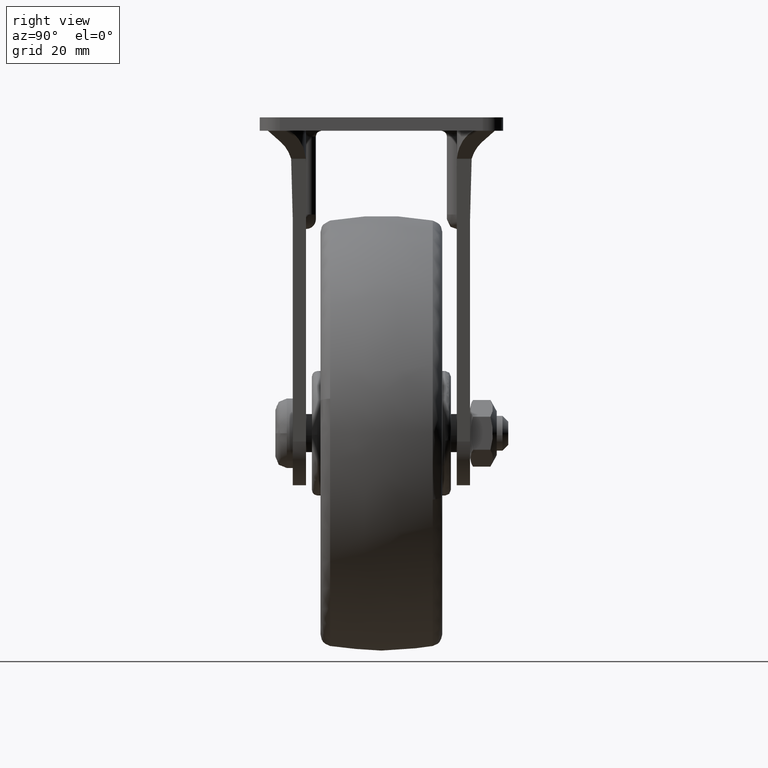
[diagram: clean part render]
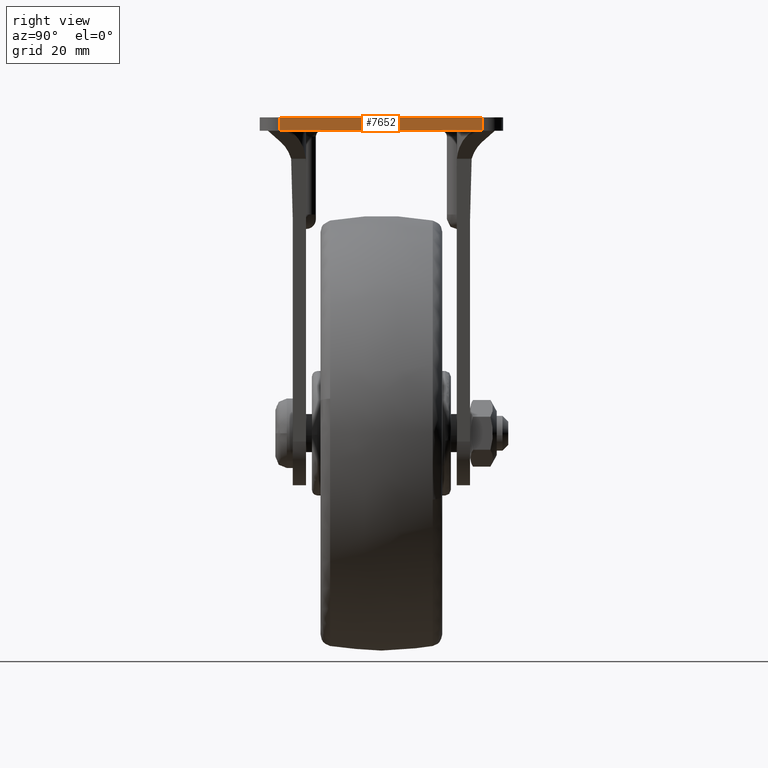
[diagram: same view with one face highlighted and labeled with its STEP entity id]
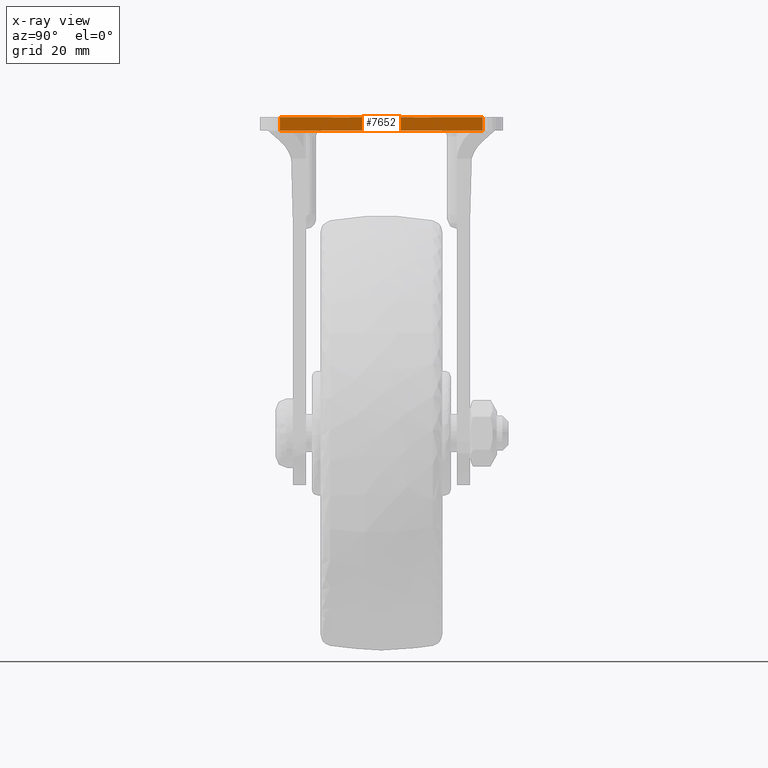
[diagram: x-ray of the same camera — body ghosted, the highlighted face saturated]
A machine part, right view. The second image highlights one B-rep face of the part: STEP entity #7652.
The next image is the same camera in x-ray: the body ghosted, the highlighted face saturated — about 0% of this face is hidden behind the body in this view.
In plain terms, the highlighted face is a freeform B-spline surface patch.
Its self-contained STEP definition (entity closure, byte-faithful):
#7249=CARTESIAN_POINT('',(35.0,-17.500000000000000,54.500000000000000));
#7250=VERTEX_POINT('',#7249);
#7266=CARTESIAN_POINT('',(35.0,17.500000000000000,54.500000000000000));
#7267=VERTEX_POINT('',#7266);
#7268=CARTESIAN_POINT('',(35.0,17.500000000000000,54.500000000000000));
#7269=CARTESIAN_POINT('',(35.0,-17.500000000000000,54.500000000000000));
#7270=QUASI_UNIFORM_CURVE('',1,(#7268,#7269),.UNSPECIFIED.,.F.,.U.);
#7271=EDGE_CURVE('',#7267,#7250,#7270,.T.);
#7606=CARTESIAN_POINT('',(35.0,-17.500000000000000,52.200000000000003));
#7607=VERTEX_POINT('',#7606);
#7623=CARTESIAN_POINT('',(35.0,-17.500000000000000,52.200000000000003));
#7624=CARTESIAN_POINT('',(35.0,-17.500000000000000,54.500000000000000));
#7625=QUASI_UNIFORM_CURVE('',1,(#7623,#7624),.UNSPECIFIED.,.F.,.U.);
#7626=EDGE_CURVE('',#7607,#7250,#7625,.T.);
#7631=CARTESIAN_POINT('',(35.0,-19.248249932163208,52.085115803315773));
#7632=CARTESIAN_POINT('',(35.0,-19.248249932163208,54.614885019228353));
#7633=CARTESIAN_POINT('',(35.0,19.248250870936360,52.085115803315773));
#7634=CARTESIAN_POINT('',(35.0,19.248250870936360,54.614885019228353));
#7635=B_SPLINE_SURFACE_WITH_KNOTS('',1,1,((#7631,#7633),(#7632,#7634)),.UNSPECIFIED.,.F.,.F.,.U.,(2,2),(2,2),(0.0,2.529769215912580),(0.0,38.496500803099579),.UNSPECIFIED.);
#7636=ORIENTED_EDGE('',*,*,#7271,.T.);
#7637=ORIENTED_EDGE('',*,*,#7626,.F.);
#7638=CARTESIAN_POINT('',(35.0,17.500000000000000,52.200000000000003));
#7639=VERTEX_POINT('',#7638);
#7640=CARTESIAN_POINT('',(35.0,17.500000000000000,52.200000000000003));
#7641=CARTESIAN_POINT('',(35.0,-17.500000000000000,52.200000000000003));
#7642=QUASI_UNIFORM_CURVE('',1,(#7640,#7641),.UNSPECIFIED.,.F.,.U.);
#7643=EDGE_CURVE('',#7639,#7607,#7642,.T.);
#7644=ORIENTED_EDGE('',*,*,#7643,.F.);
#7645=CARTESIAN_POINT('',(35.0,17.500000000000000,52.200000000000003));
#7646=CARTESIAN_POINT('',(35.0,17.500000000000000,54.500000000000000));
#7647=QUASI_UNIFORM_CURVE('',1,(#7645,#7646),.UNSPECIFIED.,.F.,.U.);
#7648=EDGE_CURVE('',#7639,#7267,#7647,.T.);
#7649=ORIENTED_EDGE('',*,*,#7648,.T.);
#7650=EDGE_LOOP('',(#7636,#7637,#7644,#7649));
#7651=FACE_OUTER_BOUND('',#7650,.T.);
#7652=ADVANCED_FACE('',(#7651),#7635,.F.);